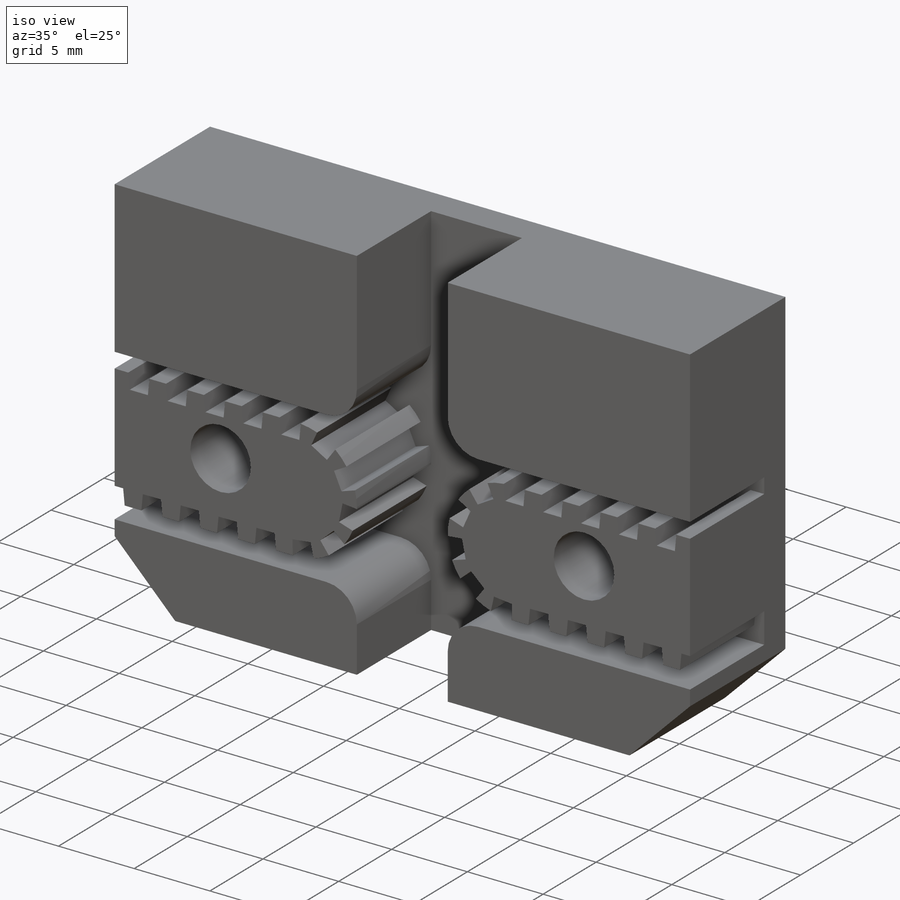
[diagram: iso view]
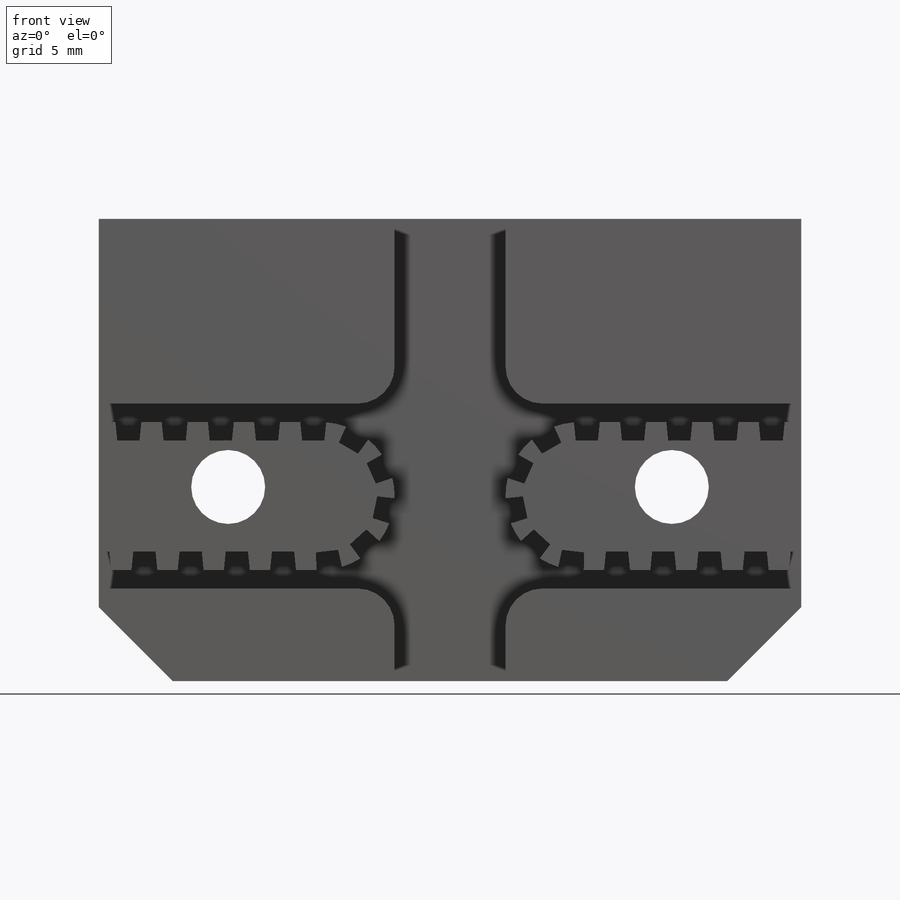
[diagram: front view]
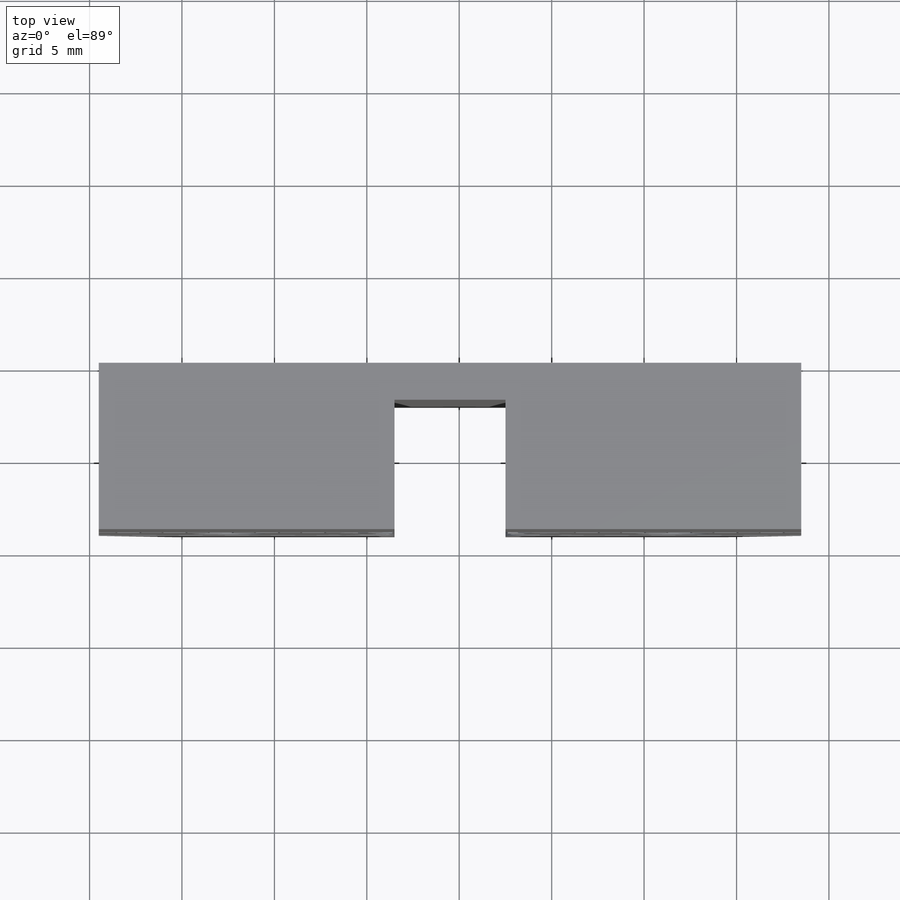
[diagram: top view]
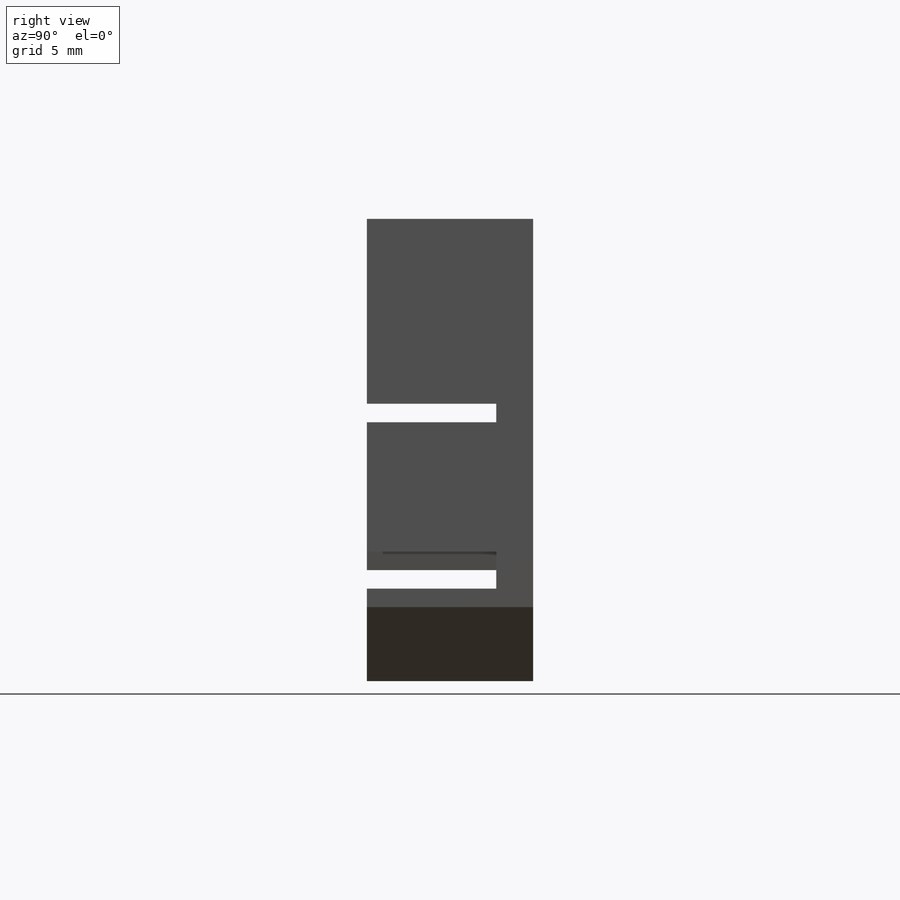
[diagram: right view]
SOLIDWORKS PART (.sldprt)
format: sldprt  version: not decoded by parser v0  size: 391,680 bytes
history: native  units: mm
features: sketch x5, plane x3, cut_extrude x3, fillet x2, material x1, extrude x1, chamfer x1, mirror x1 (+10 scaffold rows collapsed)
feature tree (27):
  scaffold x10  (default folders/planes/origin — collapsed)
  material  "Matériau <non spécifié>"
  plane  "Plan de face"
  plane  "Plan de dessus"
  plane  "Plan de droite"
  sketch  "Esquisse1"  dims[D1=25.0mm D2=19.0mm]
  extrude  "Boss.-Extru.1"  Depth=9mm
  sketch  "Esquisse3"  dims[c1.D1=12.0mm c1.D2=16.8mm c2.D1=8.0mm c2.D2=10.0mm c3.D1=16.0mm c3.D3=10.0mm c3.D2=10.0mm c3.D4=8.0mm c3.D5=9.0mm c4.D3=10.0mm]
  cut_extrude  "Enlèv. mat.-Extru.1"  Depth=7mm
  fillet  "Congé1"  Radius=4mm
  sketch  "Esquisse6"  dims[c1.D1=0.7mm c1.D2=1.0mm c1.D3=1.2mm c2.D2=1.0mm c2.D1=1.0mm c2.D4=0.1mm c2.D5=0.1mm]
  cut_extrude  "Enlèv. mat.-Extru.2"  Depth=7mm
  sketch  "Esquisse8"  dims[D1=15.0 D3=2.5mm D2=1.0 D4=50.0mm]
  chamfer  "Chanfrein3"  Distance=4mm Angle=45deg
  fillet  "Congé3"  Radius=2mm
  mirror  "Symétrie1"
  sketch  "Esquisse12"  dims[D2=4.0mm D1=24.0mm]
  cut_extrude  "Enlèv. mat.-Extru.3"  [1 undecoded]
decode coverage: 11 of 13 modeling features carry decoded parameters
note: 1 parameter value undecoded
note: suppression state not decoded; provenance and decode notes live in map.json
